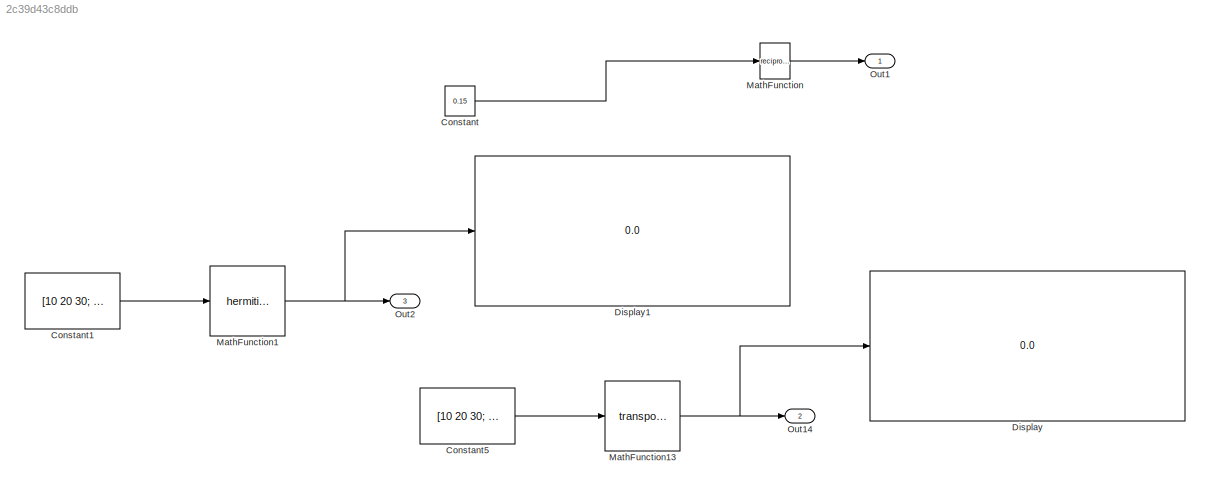
MODEL slx_2c39d43c8ddb
KIND model
CONFIG AbsTol = auto
CONFIG EnableMultiTasking = on
CONFIG FixedStep = 0.200000
CONFIG MaxStep = auto
CONFIG MinStep = auto
CONFIG RelTol = 1e-3
CONFIG SampleTimeConstraint = Unconstrained
CONFIG Solver = FixedStepDiscrete
CONFIG SolverName = FixedStepDiscrete
CONFIG StartTime = 0.0
CONFIG StopTime = 10.0
WORKSPACE source: MAT-file member
WORKSPACE already_pp = 0
BLOCK [Constant] Constant
  Value = 0.15
BLOCK [Constant] Constant1
  Value = [10 20 30; 40 50 60]
BLOCK [Constant] Constant5
  Value = [10 20 30; 40 50 60]
BLOCK [Display] Display
  Decimation = 1
  Ports = [1]
BLOCK [Display] Display1
  Decimation = 1
  Ports = [1]
BLOCK [Math] MathFunction
  Operator = reciprocal
  Ports = [1, 1]
BLOCK [Math] MathFunction1
  Operator = hermitian
  Ports = [1, 1]
BLOCK [Math] MathFunction13
  Operator = transpose
  Ports = [1, 1]
BLOCK [Outport] Out1
  IconDisplay = Port number
BLOCK [Outport] Out14
  IconDisplay = Port number
  Port = 2
BLOCK [Outport] Out2
  IconDisplay = Port number
  Port = 3
LINE Constant1:1 -> MathFunction1:1
LINE Constant5:1 -> MathFunction13:1
LINE Constant:1 -> MathFunction:1
NET MathFunction13:1 -> Display:1, Out14:1
NET MathFunction1:1 -> Display1:1, Out2:1
LINE MathFunction:1 -> Out1:1
note: NET lines group one-source signal fan-out (src -> all destinations, sorted); 1:1 wires keep LINE
